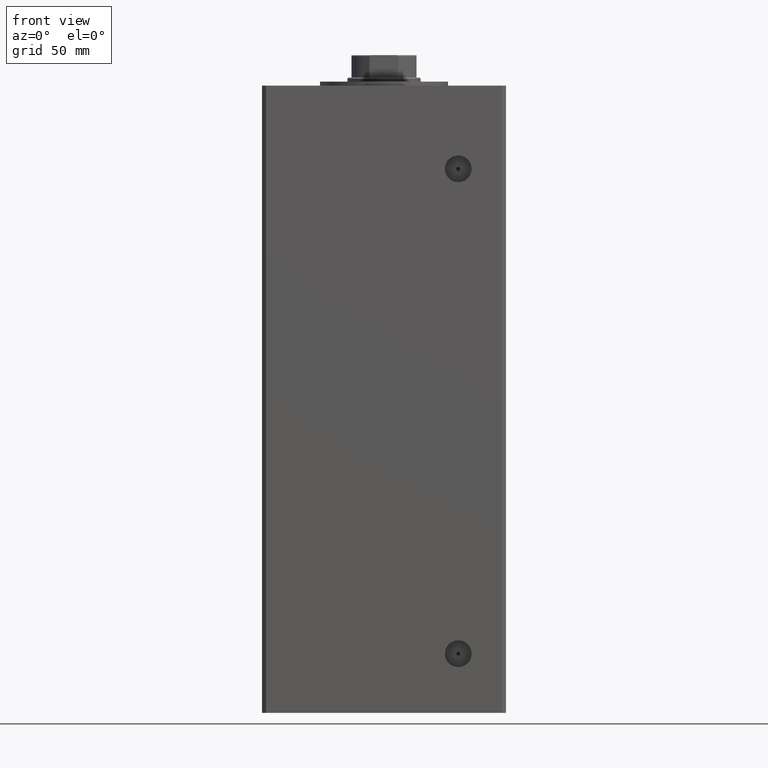
[diagram: clean part render]
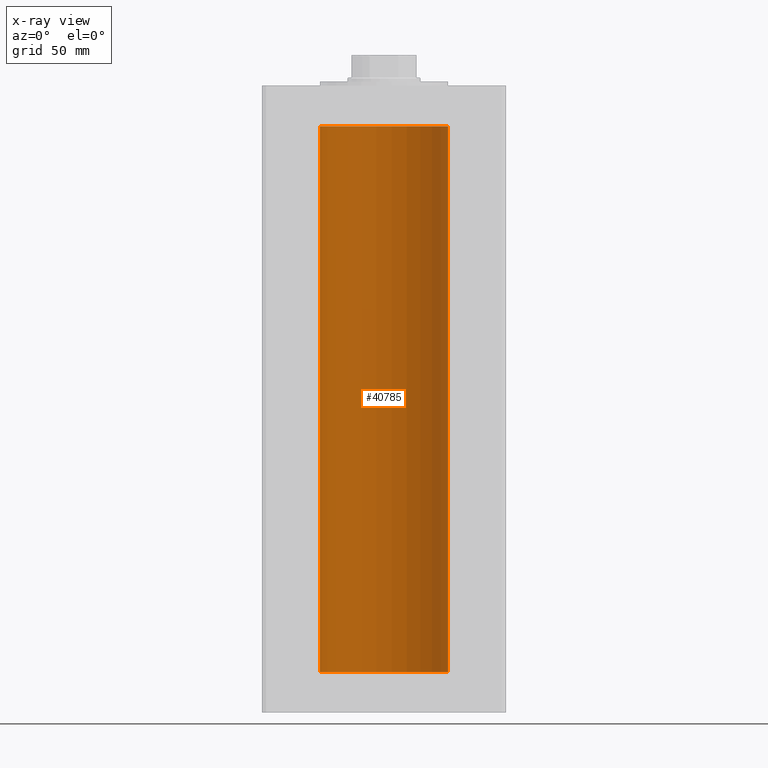
[diagram: x-ray — body ghosted, one internal face saturated and labeled with its STEP entity id]
A machine part, front view, then the same camera in x-ray: the body is ghosted and one INTERNAL B-rep face — a face not visible from any outside direction — is saturated and labeled: STEP entity #40785.
In plain terms, the highlighted cylindrical surface (partial cylindrical patch) has radius 31.5 mm, axis along (-0, -0, -1).
Its self-contained STEP definition (entity closure, byte-faithful):
#116 = CARTESIAN_POINT ( 'NONE',  ( 0.000000000000000000, 0.000000000000000000, 268.5000000000000000 ) ) ;
#599 = VERTEX_POINT ( 'NONE', #22745 ) ;
#1937 = ORIENTED_EDGE ( 'NONE', *, *, #9844, .T. ) ;
#2643 = VECTOR ( 'NONE', #50960, 1000.000000000000000 ) ;
#3806 = EDGE_CURVE ( 'NONE', #11411, #599, #49380, .T. ) ;
#4581 = DIRECTION ( 'NONE',  ( -1.000000000000000000, 0.000000000000000000, 0.000000000000000000 ) ) ;
#5547 = EDGE_LOOP ( 'NONE', ( #32791, #22544, #1937, #36681 ) ) ;
#5895 = VERTEX_POINT ( 'NONE', #51713 ) ;
#6303 = AXIS2_PLACEMENT_3D ( 'NONE', #116, #48085, #8280 ) ;
#6683 = LINE ( 'NONE', #19321, #2643 ) ;
#8280 = DIRECTION ( 'NONE',  ( 1.000000000000000000, 0.000000000000000000, 0.000000000000000000 ) ) ;
#8482 = VERTEX_POINT ( 'NONE', #16872 ) ;
#9844 = EDGE_CURVE ( 'NONE', #5895, #599, #25635, .T. ) ;
#11411 = VERTEX_POINT ( 'NONE', #30252 ) ;
#11934 = CYLINDRICAL_SURFACE ( 'NONE', #27612, 31.50000000000000000 ) ;
#12737 = DIRECTION ( 'NONE',  ( -0.000000000000000000, -0.000000000000000000, -1.000000000000000000 ) ) ;
#13896 = CIRCLE ( 'NONE', #6303, 31.50000000000000000 ) ;
#16793 = CARTESIAN_POINT ( 'NONE',  ( 0.000000000000000000, 0.000000000000000000, 0.000000000000000000 ) ) ;
#16872 = CARTESIAN_POINT ( 'NONE',  ( 31.50000000000000000, 3.857637417314162689E-15, 268.5000000000000000 ) ) ;
#19321 = CARTESIAN_POINT ( 'NONE',  ( 31.50000000000000000, 3.857637417314162689E-15, 268.5000000000000000 ) ) ;
#22544 = ORIENTED_EDGE ( 'NONE', *, *, #30322, .T. ) ;
#22745 = CARTESIAN_POINT ( 'NONE',  ( -31.50000000000000000, 0.000000000000000000, 0.000000000000000000 ) ) ;
#24431 = DIRECTION ( 'NONE',  ( 1.000000000000000000, 0.000000000000000000, 0.000000000000000000 ) ) ;
#25635 = LINE ( 'NONE', #33543, #37833 ) ;
#27612 = AXIS2_PLACEMENT_3D ( 'NONE', #40401, #12737, #4581 ) ;
#29582 = DIRECTION ( 'NONE',  ( -0.000000000000000000, -0.000000000000000000, -1.000000000000000000 ) ) ;
#30252 = CARTESIAN_POINT ( 'NONE',  ( 31.50000000000000000, 3.857637417314162689E-15, 0.000000000000000000 ) ) ;
#30322 = EDGE_CURVE ( 'NONE', #8482, #5895, #13896, .T. ) ;
#32791 = ORIENTED_EDGE ( 'NONE', *, *, #52152, .F. ) ;
#33385 = AXIS2_PLACEMENT_3D ( 'NONE', #16793, #47437, #24431 ) ;
#33543 = CARTESIAN_POINT ( 'NONE',  ( -31.50000000000000000, 0.000000000000000000, 268.5000000000000000 ) ) ;
#36681 = ORIENTED_EDGE ( 'NONE', *, *, #3806, .F. ) ;
#37833 = VECTOR ( 'NONE', #29582, 1000.000000000000000 ) ;
#40401 = CARTESIAN_POINT ( 'NONE',  ( 0.000000000000000000, 0.000000000000000000, 268.5000000000000000 ) ) ;
#40785 = ADVANCED_FACE ( 'NONE', ( #48854 ), #11934, .F. ) ;
#47437 = DIRECTION ( 'NONE',  ( -0.000000000000000000, 0.000000000000000000, 1.000000000000000000 ) ) ;
#48085 = DIRECTION ( 'NONE',  ( -0.000000000000000000, 0.000000000000000000, 1.000000000000000000 ) ) ;
#48854 = FACE_OUTER_BOUND ( 'NONE', #5547, .T. ) ;
#49380 = CIRCLE ( 'NONE', #33385, 31.50000000000000000 ) ;
#50960 = DIRECTION ( 'NONE',  ( -0.000000000000000000, -0.000000000000000000, -1.000000000000000000 ) ) ;
#51713 = CARTESIAN_POINT ( 'NONE',  ( -31.50000000000000000, 0.000000000000000000, 268.5000000000000000 ) ) ;
#52152 = EDGE_CURVE ( 'NONE', #8482, #11411, #6683, .T. ) ;